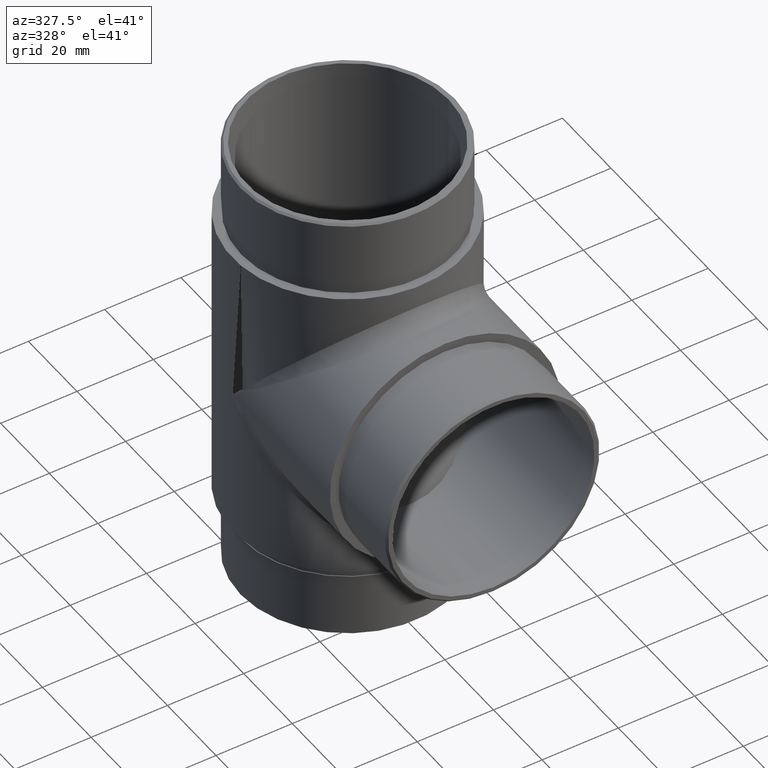
[diagram: clean part render]
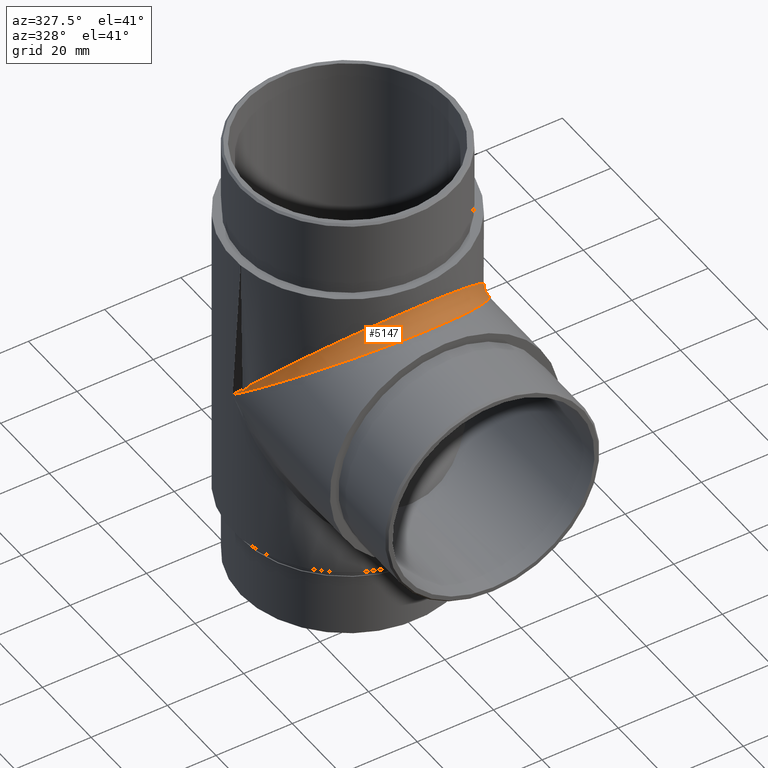
[diagram: same view with one face highlighted and labeled with its STEP entity id]
A machine part, auxiliary view. The second image highlights one B-rep face of the part: STEP entity #5147.
In plain terms, the highlighted face is a freeform B-spline surface patch.
Its self-contained STEP definition (entity closure, byte-faithful):
#547 = CARTESIAN_POINT ( 'NONE',  ( 22.71461237540334800, 37.43276646751245100, 19.92392653014548300 ) ) ;
#626 = CARTESIAN_POINT ( 'NONE',  ( 28.39934854013214900, 49.64746410761767900, 10.35253589237818900 ) ) ;
#671 = CARTESIAN_POINT ( 'NONE',  ( 28.61012205332210500, 48.99633526676254300, 9.714802099765735800 ) ) ;
#711 = CARTESIAN_POINT ( 'NONE',  ( 7.817369440285213900, 26.94223144732146100, 29.18570195793227400 ) ) ;
#750 = CARTESIAN_POINT ( 'NONE',  ( 1.973312885254041100, 29.85000000000114200, 34.14999999999999100 ) ) ;
#794 = CARTESIAN_POINT ( 'NONE',  ( 1.973312885254049800, 25.85000000000114200, 30.14999999999999100 ) ) ;
#836 = CARTESIAN_POINT ( 'NONE',  ( -15.10969282583487300, 33.83487728956323100, 29.63644910651299500 ) ) ;
#952 =( BOUNDED_SURFACE ( )  B_SPLINE_SURFACE ( 3, 2, ( 
 ( #7375, #5498, #4489 ),
 ( #6467, #7291, #8345 ),
 ( #10273, #11238, #6432 ),
 ( #5457, #4445, #1606 ),
 ( #671, #626, #3401 ),
 ( #2498, #8382, #9256 ),
 ( #10194, #2535, #2572 ),
 ( #11279, #12273, #3481 ),
 ( #547, #1448, #4404 ),
 ( #8222, #8268, #11155 ),
 ( #2411, #10234, #9181 ),
 ( #11196, #10153, #4367 ),
 ( #11115, #5382, #6353 ),
 ( #5336, #7336, #1715 ),
 ( #711, #10390, #5609 ),
 ( #6504, #2738, #2655 ),
 ( #794, #6547, #750 ),
 ( #7564, #7483, #3634 ),
 ( #3758, #4559, #6632 ),
 ( #8499, #8461, #2777 ),
 ( #11487, #10511, #1800 ),
 ( #9536, #1758, #5572 ),
 ( #4686, #9410, #836 ),
 ( #1673, #8590, #12349 ),
 ( #4602, #7528, #11313 ),
 ( #11350, #8547, #2697 ),
 ( #9451, #7608, #2613 ),
 ( #1639, #4733, #5538 ),
 ( #3671, #5692, #6592 ),
 ( #9493, #10425, #12473 ),
 ( #6672, #12391, #3715 ),
 ( #12306, #10466, #4644 ),
 ( #11396, #8424, #11441 ),
 ( #5649, #7441, #9374 ) ),
 .UNSPECIFIED., .F., .F., .T. ) 
 B_SPLINE_SURFACE_WITH_KNOTS ( ( 4, 2, 2, 2, 2, 2, 2, 2, 2, 2, 2, 2, 2, 2, 2, 2, 4 ),
 ( 3, 3 ),
 ( 1.570796326794913200, 1.767145867644273100, 1.963495408493633100, 2.159844949342993200, 2.356194490192353300, 2.552544031041713300, 2.748893571891073000, 2.945243112740433000, 3.141592653589793100, 3.337942194439153200, 3.534291735288513300, 3.730641276137872900, 3.926990816987233000, 4.123340357836593000, 4.319689898685952700, 4.516039439535312300, 4.712388980384672800 ),
 ( 0.0000000000000000000, 1.000000000000000000 ),
 .UNSPECIFIED. ) 
 GEOMETRIC_REPRESENTATION_ITEM ( )  RATIONAL_B_SPLINE_SURFACE ( (
 ( 1.000000000000000000, 1.000000000000000000, 1.000000000000000000),
 ( 1.000000000000000000, 1.000009746407727600, 1.000000000000000000),
 ( 1.000000000000000000, 0.9967613244647055600, 1.000000000000000000),
 ( 1.000000000000000000, 0.9841171504830355000, 1.000000000000000000),
 ( 1.000000000000000000, 0.9747108043725100100, 1.000000000000000000),
 ( 1.000000000000000000, 0.9506740353898043300, 1.000000000000000000),
 ( 1.000000000000000000, 0.9360421842853928800, 1.000000000000000000),
 ( 1.000000000000000000, 0.9031650994010042000, 1.000000000000000000),
 ( 1.000000000000000000, 0.8849191471549268100, 1.000000000000000000),
 ( 1.000000000000000000, 0.8471316604139526000, 1.000000000000000000),
 ( 1.000000000000000000, 0.8275942696254644500, 1.000000000000000000),
 ( 1.000000000000000000, 0.7902180086178779400, 1.000000000000000000),
 ( 1.000000000000000000, 0.7723968218516220600, 1.000000000000000000),
 ( 1.000000000000000000, 0.7418334178455839900, 1.000000000000000000),
 ( 1.000000000000000000, 0.7291288940439565300, 1.000000000000000000),
 ( 1.000000000000000000, 0.7117460024993599300, 1.000000000000000000),
 ( 1.000000000000000000, 0.7071067811865477900, 1.000000000000000000),
 ( 1.000000000000000000, 0.7071067811865477900, 1.000000000000000000),
 ( 1.000000000000000000, 0.7117460024997395200, 1.000000000000000000),
 ( 1.000000000000000000, 0.7291288940435776100, 1.000000000000000000),
 ( 1.000000000000000000, 0.7418334178450518600, 1.000000000000000000),
 ( 1.000000000000000000, 0.7723968218521526400, 1.000000000000000000),
 ( 1.000000000000000000, 0.7902180086178787200, 1.000000000000000000),
 ( 1.000000000000000000, 0.8275942696254652300, 1.000000000000000000),
 ( 1.000000000000000000, 0.8471316604133442000, 1.000000000000000000),
 ( 1.000000000000000000, 0.8849191471555341000, 1.000000000000000000),
 ( 1.000000000000000000, 0.9031650994005203700, 1.000000000000000000),
 ( 1.000000000000000000, 0.9360421842858771500, 1.000000000000000000),
 ( 1.000000000000000000, 0.9506740353898045500, 1.000000000000000000),
 ( 1.000000000000000000, 0.9747108043725102300, 1.000000000000000000),
 ( 1.000000000000000000, 0.9841171504830355000, 1.000000000000000000),
 ( 1.000000000000000000, 0.9967613244647055600, 1.000000000000000000),
 ( 1.000000000000000000, 1.000009746407727600, 1.000000000000000000),
 ( 1.000000000000000000, 1.000000000000000000, 1.000000000000000000) ) ) 
 REPRESENTATION_ITEM ( '' )  SURFACE ( )  );
#1073 = CARTESIAN_POINT ( 'NONE',  ( 30.15000000000000200, 60.00000000000113700, 0.0000000000000000000 ) ) ;
#1109 = VERTEX_POINT ( 'NONE', #1073 ) ;
#1448 = CARTESIAN_POINT ( 'NONE',  ( 21.84266032615549900, 39.08334298253967600, 20.91665701746141400 ) ) ;
#1606 = CARTESIAN_POINT ( 'NONE',  ( 29.18570195790700300, 52.18263055958873800, 8.854499714425880800 ) ) ;
#1639 = CARTESIAN_POINT ( 'NONE',  ( -26.16512271046338600, 42.88570447759362000, 15.10969282579672400 ) ) ;
#1673 = CARTESIAN_POINT ( 'NONE',  ( -18.39119222524788100, 32.84707458624124900, 23.97249491140510400 ) ) ;
#1715 = CARTESIAN_POINT ( 'NONE',  ( 9.714802099847037900, 31.38987794671270500, 32.40582647163278600 ) ) ;
#1758 = CARTESIAN_POINT ( 'NONE',  ( -12.11442718071478500, 32.29817562922937700, 27.70182437078396400 ) ) ;
#1800 = CARTESIAN_POINT ( 'NONE',  ( -9.714802099846991700, 31.38987794671269800, 32.40582647163280000 ) ) ;
#2131 = CARTESIAN_POINT ( 'NONE',  ( -30.15000000000000200, 60.00000000000113700, 0.0000000000000000000 ) ) ;
#2411 = CARTESIAN_POINT ( 'NONE',  ( 18.39119222524475100, 32.84707458624119200, 23.97249491140720700 ) ) ;
#2498 = CARTESIAN_POINT ( 'NONE',  ( 27.09981375710820100, 44.86638630270335400, 13.36100887184982300 ) ) ;
#2535 = CARTESIAN_POINT ( 'NONE',  ( 25.65097709207959700, 43.99439259165404800, 16.00560740835198500 ) ) ;
#2572 = CARTESIAN_POINT ( 'NONE',  ( 26.16512271047024300, 44.89030717421476900, 17.11429552241763500 ) ) ;
#2613 = CARTESIAN_POINT ( 'NONE',  ( -23.97249491137740000, 41.60880777471175700, 20.83115139282178100 ) ) ;
#2655 = CARTESIAN_POINT ( 'NONE',  ( 3.946576977287297200, 30.04434954961860900, 33.92986609886099800 ) ) ;
#2697 = CARTESIAN_POINT ( 'NONE',  ( -22.71461237540557900, 40.07607346985794500, 22.56723353248872900 ) ) ;
#2738 = CARTESIAN_POINT ( 'NONE',  ( 3.403931278288452800, 29.98621332625823800, 30.01378667373888800 ) ) ;
#2777 = CARTESIAN_POINT ( 'NONE',  ( -7.817369440282601700, 30.81429804206835900, 33.05776855268756300 ) ) ;
#3401 = CARTESIAN_POINT ( 'NONE',  ( 28.61012205331920200, 50.28519790022854600, 11.00366473323067100 ) ) ;
#3481 = CARTESIAN_POINT ( 'NONE',  ( 23.97249491137271700, 41.60880777470474400, 20.83115139282182700 ) ) ;
#3634 = CARTESIAN_POINT ( 'NONE',  ( -1.973312885254060200, 29.85000000000114200, 34.14999999999999100 ) ) ;
#3671 = CARTESIAN_POINT ( 'NONE',  ( -27.09981375710589900, 44.86638630270340400, 13.36100887185538400 ) ) ;
#3715 = CARTESIAN_POINT ( 'NONE',  ( -29.18570195790742300, 52.18263055959083400, 8.854499714425863000 ) ) ;
#3758 = CARTESIAN_POINT ( 'NONE',  ( -3.946576977288904800, 26.07013390114805400, 29.95565045038220500 ) ) ;
#4037 = FACE_OUTER_BOUND ( 'NONE', #5227, .T. ) ;
#4367 = CARTESIAN_POINT ( 'NONE',  ( 15.10969282583786800, 33.83487728956523500, 29.63644910651305200 ) ) ;
#4404 = CARTESIAN_POINT ( 'NONE',  ( 22.71461237540562200, 40.07607346985798800, 22.56723353249342900 ) ) ;
#4445 = CARTESIAN_POINT ( 'NONE',  ( 29.05673657740395700, 51.66599362691430000, 8.334006373120924800 ) ) ;
#4489 = CARTESIAN_POINT ( 'NONE',  ( 30.14999999999999100, 60.00000000000049700, 5.666206599546922900E-013 ) ) ;
#4559 = CARTESIAN_POINT ( 'NONE',  ( -3.403931278291453000, 29.98621332626640500, 30.01378667373872500 ) ) ;
#4602 = CARTESIAN_POINT ( 'NONE',  ( -19.92392653014269400, 34.27184037744819300, 22.71461237540608400 ) ) ;
#4644 = CARTESIAN_POINT ( 'NONE',  ( -29.95565045040714500, 56.05342302283784800, 4.470169279276605700 ) ) ;
#4686 = CARTESIAN_POINT ( 'NONE',  ( -15.10969282583388200, 30.36355089349701000, 26.16512271043852800 ) ) ;
#4733 = CARTESIAN_POINT ( 'NONE',  ( -25.65097709208395900, 43.99439259164332600, 16.00560740835280900 ) ) ;
#5117 = CARTESIAN_POINT ( 'NONE',  ( 30.15000000000000200, 60.00000000000113700, 0.0000000000000000000 ) ) ;
#5147 = ADVANCED_FACE ( 'NONE', ( #4037 ), #952, .F. ) ;
#5227 = EDGE_LOOP ( 'NONE', ( #10887, #7146 ) ) ;
#5336 = CARTESIAN_POINT ( 'NONE',  ( 9.714802099845607900, 27.59417352836834800, 28.61012205328899300 ) ) ;
#5382 = CARTESIAN_POINT ( 'NONE',  ( 12.11442718071194100, 32.29817562922166000, 27.70182437077538800 ) ) ;
#5447 = EDGE_CURVE ( 'NONE', #7260, #1109, #7390, .T. ) ;
#5457 = CARTESIAN_POINT ( 'NONE',  ( 29.18570195790743300, 51.14550028557389500, 7.817369440409911400 ) ) ;
#5498 = CARTESIAN_POINT ( 'NONE',  ( 30.14999999999999100, 60.00000000000053300, 5.334364338958522600E-013 ) ) ;
#5538 = CARTESIAN_POINT ( 'NONE',  ( -26.16512271046560700, 44.89030717420784100, 17.11429552241759900 ) ) ;
#5545 = CARTESIAN_POINT ( 'NONE',  ( 30.15000000000000200, 60.00000000000113700, 0.0000000000000000000 ) ) ;
#5572 = CARTESIAN_POINT ( 'NONE',  ( -13.36100887176753500, 32.90018624285884400, 30.69514559888819600 ) ) ;
#5609 = CARTESIAN_POINT ( 'NONE',  ( 7.817369440284993600, 30.81429804206882700, 33.05776855267967600 ) ) ;
#5649 = CARTESIAN_POINT ( 'NONE',  ( -30.14999999999999100, 60.00000000000058300, 4.875528935204017800E-013 ) ) ;
#5692 = CARTESIAN_POINT ( 'NONE',  ( -26.70548562074148800, 45.81913894219532300, 14.18086105779769900 ) ) ;
#6270 = CARTESIAN_POINT ( 'NONE',  ( -30.15000000000000200, 60.00000000000113700, 0.0000000000000000000 ) ) ;
#6353 = CARTESIAN_POINT ( 'NONE',  ( 13.36100887176757900, 32.90018624285885800, 30.69514559888818200 ) ) ;
#6432 = CARTESIAN_POINT ( 'NONE',  ( 29.95565045040756000, 56.05342302283990100, 4.470169279276627000 ) ) ;
#6467 = CARTESIAN_POINT ( 'NONE',  ( 30.14999999999996300, 57.76486237213426000, 1.973335270302062600 ) ) ;
#6504 = CARTESIAN_POINT ( 'NONE',  ( 3.946576977287125800, 26.07013390114013900, 29.95565045038254600 ) ) ;
#6547 = CARTESIAN_POINT ( 'NONE',  ( 1.711513497941279800, 29.85000000000114200, 30.14999999999999900 ) ) ;
#6592 = CARTESIAN_POINT ( 'NONE',  ( -27.09981375710948000, 46.63899112815423800, 15.13361369730564700 ) ) ;
#6632 = CARTESIAN_POINT ( 'NONE',  ( -3.946576977289832500, 30.04434954961910600, 33.92986609885308300 ) ) ;
#6672 = CARTESIAN_POINT ( 'NONE',  ( -29.18570195790784900, 51.14550028557391700, 7.817369440407815300 ) ) ;
#7146 = ORIENTED_EDGE ( 'NONE', *, *, #8702, .F. ) ;
#7260 = VERTEX_POINT ( 'NONE', #2131 ) ;
#7291 = CARTESIAN_POINT ( 'NONE',  ( 30.15000000000547300, 57.89578356415081800, 2.104216435864685300 ) ) ;
#7336 = CARTESIAN_POINT ( 'NONE',  ( 8.611350963499768700, 31.02200225019065300, 28.97799774981469800 ) ) ;
#7375 = CARTESIAN_POINT ( 'NONE',  ( 30.14999999999999100, 60.00000000000056800, 5.002522078370123200E-013 ) ) ;
#7390 =( BOUNDED_CURVE ( )  B_SPLINE_CURVE ( 3, ( #6270, #7999, #8176, #5117 ),
 .UNSPECIFIED., .F., .T. ) 
 B_SPLINE_CURVE_WITH_KNOTS ( ( 4, 4 ),
 ( 1.570796326794896600, 4.712388980384689700 ),
 .UNSPECIFIED. ) 
 CURVE ( )  GEOMETRIC_REPRESENTATION_ITEM ( )  RATIONAL_B_SPLINE_CURVE ( ( 1.000000000000000000, 0.3333333333333333700, 0.3333333333333333700, 1.000000000000000000 ) ) 
 REPRESENTATION_ITEM ( '' )  );
#7441 = CARTESIAN_POINT ( 'NONE',  ( -30.14999999999999100, 60.00000000000054700, 5.198947106693505700E-013 ) ) ;
#7483 = CARTESIAN_POINT ( 'NONE',  ( -1.711513497941296700, 29.85000000000114200, 30.14999999999999900 ) ) ;
#7528 = CARTESIAN_POINT ( 'NONE',  ( -18.84485860836576500, 36.33248563123864000, 23.66751436878187000 ) ) ;
#7564 = CARTESIAN_POINT ( 'NONE',  ( -1.973312885254068900, 25.85000000000114200, 30.14999999999999100 ) ) ;
#7608 = CARTESIAN_POINT ( 'NONE',  ( -23.22945405938697800, 40.62781256636160500, 19.37218743364460100 ) ) ;
#7999 = CARTESIAN_POINT ( 'NONE',  ( -30.15000000000001600, -0.2999999999988775500, 68.29999999999996900 ) ) ;
#8176 = CARTESIAN_POINT ( 'NONE',  ( 30.14999999999999500, -0.2999999999988844900, 68.29999999999996900 ) ) ;
#8222 = CARTESIAN_POINT ( 'NONE',  ( 19.92392653014511700, 34.27184037744823500, 22.71461237540366800 ) ) ;
#8268 = CARTESIAN_POINT ( 'NONE',  ( 18.84485860838147500, 36.33248563122997900, 23.66751436877111600 ) ) ;
#8345 = CARTESIAN_POINT ( 'NONE',  ( 30.15000000000002300, 58.02666472971969100, 2.235137627885731800 ) ) ;
#8382 = CARTESIAN_POINT ( 'NONE',  ( 26.70548562075751100, 45.81913894220599600, 14.18086105780042200 ) ) ;
#8424 = CARTESIAN_POINT ( 'NONE',  ( -30.15000000000547300, 57.89578356414995900, 2.104216435864913100 ) ) ;
#8461 = CARTESIAN_POINT ( 'NONE',  ( -6.871901594364396200, 30.57761740538390100, 29.42238259461332800 ) ) ;
#8499 = CARTESIAN_POINT ( 'NONE',  ( -7.817369440283579600, 26.94223144731357100, 29.18570195793259700 ) ) ;
#8547 = CARTESIAN_POINT ( 'NONE',  ( -21.84266032616838200, 39.08334298252941600, 20.91665701745308700 ) ) ;
#8590 = CARTESIAN_POINT ( 'NONE',  ( -17.22113455796238300, 35.13706449531657900, 24.86293550468019500 ) ) ;
#8702 = EDGE_CURVE ( 'NONE', #1109, #7260, #9306, .T. ) ;
#9181 = CARTESIAN_POINT ( 'NONE',  ( 18.39119222524363600, 36.02750508859323000, 27.15292541375107400 ) ) ;
#9256 = CARTESIAN_POINT ( 'NONE',  ( 27.09981375711101100, 46.63899112815793300, 15.13361369730569100 ) ) ;
#9306 =( BOUNDED_CURVE ( )  B_SPLINE_CURVE ( 3, ( #5545, #10241, #10281, #11286 ),
 .UNSPECIFIED., .F., .F. ) 
 B_SPLINE_CURVE_WITH_KNOTS ( ( 4, 4 ),
 ( 1.570796326794896800, 4.712388980384689700 ),
 .UNSPECIFIED. ) 
 CURVE ( )  GEOMETRIC_REPRESENTATION_ITEM ( )  RATIONAL_B_SPLINE_CURVE ( ( 1.000000000000000000, 0.3333333333333333700, 0.3333333333333333700, 1.000000000000000000 ) ) 
 REPRESENTATION_ITEM ( '' )  );
#9374 = CARTESIAN_POINT ( 'NONE',  ( -30.14999999999999100, 60.00000000000051200, 5.522365278182992500E-013 ) ) ;
#9410 = CARTESIAN_POINT ( 'NONE',  ( -13.85397331461721600, 33.10960359085400700, 26.89039640915163800 ) ) ;
#9451 = CARTESIAN_POINT ( 'NONE',  ( -23.97249491137974800, 39.16884860716926700, 18.39119222528577400 ) ) ;
#9493 = CARTESIAN_POINT ( 'NONE',  ( -28.61012205332443200, 48.99633526676257800, 9.714802099760104800 ) ) ;
#9536 = CARTESIAN_POINT ( 'NONE',  ( -13.36100887176759100, 29.30485440111294100, 27.09981375714229700 ) ) ;
#10153 = CARTESIAN_POINT ( 'NONE',  ( 13.85397331461714600, 33.10960359086303800, 26.89039640915168100 ) ) ;
#10194 = CARTESIAN_POINT ( 'NONE',  ( 26.16512271046569500, 42.88570447759358500, 15.10969282579327500 ) ) ;
#10234 = CARTESIAN_POINT ( 'NONE',  ( 17.22113455796231200, 35.13706449530786100, 24.86293550468023700 ) ) ;
#10241 = CARTESIAN_POINT ( 'NONE',  ( 30.14999999999998400, -8.300000000001423600, 60.29999999999999000 ) ) ;
#10273 = CARTESIAN_POINT ( 'NONE',  ( 29.95565045040718000, 55.52983072072586200, 3.946576977163459800 ) ) ;
#10281 = CARTESIAN_POINT ( 'NONE',  ( -30.14999999999998400, -8.300000000001423600, 60.29999999999999000 ) ) ;
#10390 = CARTESIAN_POINT ( 'NONE',  ( 6.871901594365391800, 30.57761740539154600, 29.42238259461348800 ) ) ;
#10425 = CARTESIAN_POINT ( 'NONE',  ( -28.39934854014780900, 49.64746410762812400, 10.35253589238075000 ) ) ;
#10466 = CARTESIAN_POINT ( 'NONE',  ( -29.92684951476506300, 55.77858597293779800, 4.221414027028203000 ) ) ;
#10511 = CARTESIAN_POINT ( 'NONE',  ( -8.611350963494206900, 31.02200225018171400, 28.97799774980669700 ) ) ;
#10887 = ORIENTED_EDGE ( 'NONE', *, *, #5447, .F. ) ;
#11115 = CARTESIAN_POINT ( 'NONE',  ( 13.36100887176910300, 29.30485440111295500, 27.09981375714167100 ) ) ;
#11155 = CARTESIAN_POINT ( 'NONE',  ( 19.92392653014271200, 37.28538762459498900, 25.72815962254814400 ) ) ;
#11196 = CARTESIAN_POINT ( 'NONE',  ( 15.10969282583687900, 30.36355089349695300, 26.16512271043652000 ) ) ;
#11238 = CARTESIAN_POINT ( 'NONE',  ( 29.92684951477585600, 55.77858597293777600, 4.221414027029572600 ) ) ;
#11279 = CARTESIAN_POINT ( 'NONE',  ( 23.97249491137739200, 39.16884860716922400, 18.39119222528929500 ) ) ;
#11286 = CARTESIAN_POINT ( 'NONE',  ( -30.15000000000000200, 60.00000000000113700, 0.0000000000000000000 ) ) ;
#11313 = CARTESIAN_POINT ( 'NONE',  ( -19.92392653014266600, 37.28538762459496100, 25.72815962255294400 ) ) ;
#11350 = CARTESIAN_POINT ( 'NONE',  ( -22.71461237540568200, 37.43276646751240800, 19.92392653014315200 ) ) ;
#11396 = CARTESIAN_POINT ( 'NONE',  ( -30.14999999999996300, 57.76486237213414700, 1.973335270300365900 ) ) ;
#11441 = CARTESIAN_POINT ( 'NONE',  ( -30.15000000000002700, 58.02666472972080700, 2.235137627885348100 ) ) ;
#11487 = CARTESIAN_POINT ( 'NONE',  ( -9.714802099847027300, 27.59417352836833400, 28.61012205328839600 ) ) ;
#12273 = CARTESIAN_POINT ( 'NONE',  ( 23.22945405939274400, 40.62781256635221900, 19.37218743364372400 ) ) ;
#12306 = CARTESIAN_POINT ( 'NONE',  ( -29.95565045040676800, 55.52983072072588300, 3.946576977165519000 ) ) ;
#12349 = CARTESIAN_POINT ( 'NONE',  ( -18.39119222524676900, 36.02750508859533300, 27.15292541375101700 ) ) ;
#12391 = CARTESIAN_POINT ( 'NONE',  ( -29.05673657741489200, 51.66599362691432200, 8.334006373122276700 ) ) ;
#12473 = CARTESIAN_POINT ( 'NONE',  ( -28.61012205332075800, 50.28519790023231900, 11.00366473323063800 ) ) ;